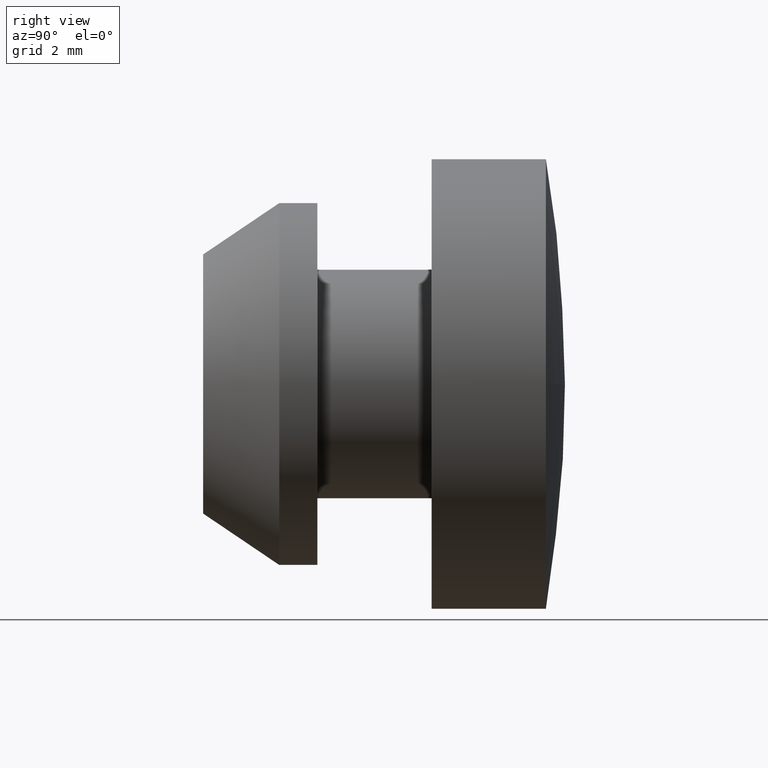
[diagram: clean part render]
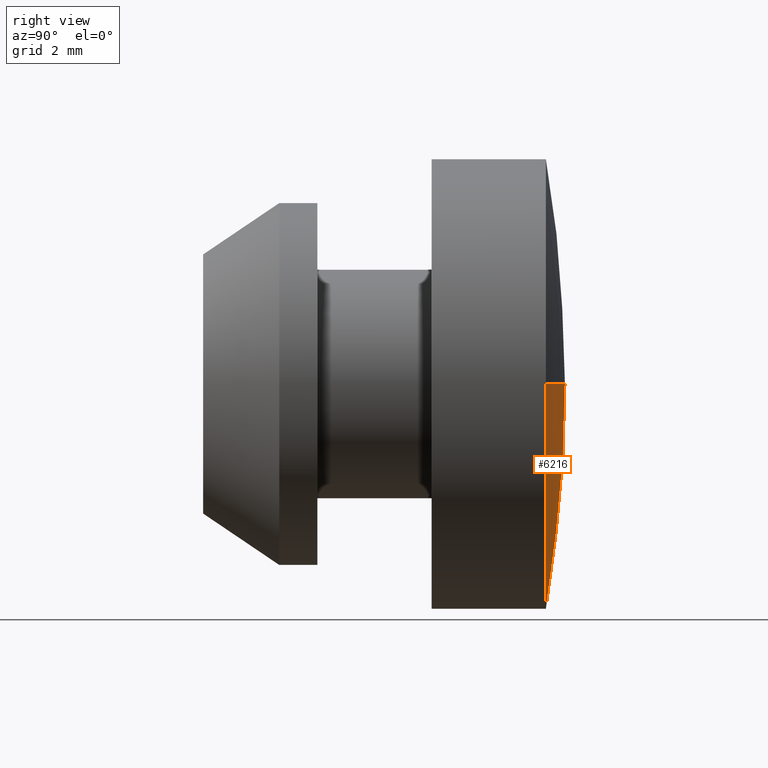
[diagram: same view with one face highlighted and labeled with its STEP entity id]
A machine part, right view. The second image highlights one B-rep face of the part: STEP entity #6216.
In plain terms, the highlighted spherical surface has radius 35.06 mm.
Its self-contained STEP definition (entity closure, byte-faithful):
#1327 = AXIS2_PLACEMENT_3D ( 'NONE', #9623, #9571, #13166 ) ;
#1517 = DIRECTION ( 'NONE',  ( -1.000000000000000000, 0.000000000000000000, 0.000000000000000000 ) ) ;
#1652 = DIRECTION ( 'NONE',  ( 0.000000000000000000, 0.000000000000000000, -1.000000000000000000 ) ) ;
#2041 = AXIS2_PLACEMENT_3D ( 'NONE', #11240, #12427, #1517 ) ;
#2165 = AXIS2_PLACEMENT_3D ( 'NONE', #2924, #9024, #1652 ) ;
#2185 = EDGE_CURVE ( 'NONE', #2352, #7444, #10930, .T. ) ;
#2352 = VERTEX_POINT ( 'NONE', #2937 ) ;
#2924 = CARTESIAN_POINT ( 'NONE',  ( 0.000000000000000000, 8.999999999999994671, 0.000000000000000000 ) ) ;
#2937 = CARTESIAN_POINT ( 'NONE',  ( 0.000000000000000000, 8.999999999999994671, -5.900000000000002132 ) ) ;
#3002 = CIRCLE ( 'NONE', #1327, 35.06000000000008754 ) ;
#3497 = VERTEX_POINT ( 'NONE', #6554 ) ;
#3704 = DIRECTION ( 'NONE',  ( 0.000000000000000000, 0.000000000000000000, -1.000000000000000000 ) ) ;
#4670 = AXIS2_PLACEMENT_3D ( 'NONE', #6227, #7296, #3704 ) ;
#5020 = EDGE_CURVE ( 'NONE', #12333, #2352, #6165, .T. ) ;
#5480 = EDGE_CURVE ( 'NONE', #3497, #7444, #13778, .T. ) ;
#6165 = CIRCLE ( 'NONE', #2165, 5.900000000000001243 ) ;
#6216 = ADVANCED_FACE ( 'NONE', ( #14538 ), #12269, .T. ) ;
#6227 = CARTESIAN_POINT ( 'NONE',  ( 0.000000000000000000, 8.999999999999994671, 0.000000000000000000 ) ) ;
#6554 = CARTESIAN_POINT ( 'NONE',  ( 2.146805838905315698E-15, 9.499999999999994671, 0.000000000000000000 ) ) ;
#6824 = CARTESIAN_POINT ( 'NONE',  ( -5.900000000000005684, 8.999999999999998224, 7.225416114969391096E-16 ) ) ;
#7296 = DIRECTION ( 'NONE',  ( -0.000000000000000000, -1.000000000000000000, -0.000000000000000000 ) ) ;
#7444 = VERTEX_POINT ( 'NONE', #7522 ) ;
#7522 = CARTESIAN_POINT ( 'NONE',  ( 5.900000000000005684, 8.999999999999998224, 0.000000000000000000 ) ) ;
#8284 = EDGE_LOOP ( 'NONE', ( #13447, #15511, #14034, #11616 ) ) ;
#8677 = AXIS2_PLACEMENT_3D ( 'NONE', #9412, #10688, #10741 ) ;
#9024 = DIRECTION ( 'NONE',  ( -0.000000000000000000, -1.000000000000000000, -0.000000000000000000 ) ) ;
#9412 = CARTESIAN_POINT ( 'NONE',  ( 0.000000000000000000, -25.56000000000009820, 0.000000000000000000 ) ) ;
#9571 = DIRECTION ( 'NONE',  ( 1.224646799147353207E-16, -0.000000000000000000, 1.000000000000000000 ) ) ;
#9623 = CARTESIAN_POINT ( 'NONE',  ( 0.000000000000000000, -25.56000000000009820, 0.000000000000000000 ) ) ;
#10688 = DIRECTION ( 'NONE',  ( 0.000000000000000000, 0.000000000000000000, 1.000000000000000000 ) ) ;
#10741 = DIRECTION ( 'NONE',  ( 1.000000000000000000, 0.000000000000000000, 0.000000000000000000 ) ) ;
#10930 = CIRCLE ( 'NONE', #4670, 5.900000000000001243 ) ;
#11068 = EDGE_CURVE ( 'NONE', #3497, #12333, #3002, .T. ) ;
#11240 = CARTESIAN_POINT ( 'NONE',  ( 0.000000000000000000, -25.56000000000009820, 0.000000000000000000 ) ) ;
#11616 = ORIENTED_EDGE ( 'NONE', *, *, #5020, .F. ) ;
#12269 = SPHERICAL_SURFACE ( 'NONE', #8677, 35.06000000000008754 ) ;
#12333 = VERTEX_POINT ( 'NONE', #6824 ) ;
#12427 = DIRECTION ( 'NONE',  ( 0.000000000000000000, 0.000000000000000000, -1.000000000000000000 ) ) ;
#13166 = DIRECTION ( 'NONE',  ( 1.000000000000000000, 0.000000000000000000, -1.224646799147353207E-16 ) ) ;
#13447 = ORIENTED_EDGE ( 'NONE', *, *, #11068, .F. ) ;
#13778 = CIRCLE ( 'NONE', #2041, 35.06000000000008754 ) ;
#14034 = ORIENTED_EDGE ( 'NONE', *, *, #2185, .F. ) ;
#14538 = FACE_OUTER_BOUND ( 'NONE', #8284, .T. ) ;
#15511 = ORIENTED_EDGE ( 'NONE', *, *, #5480, .T. ) ;